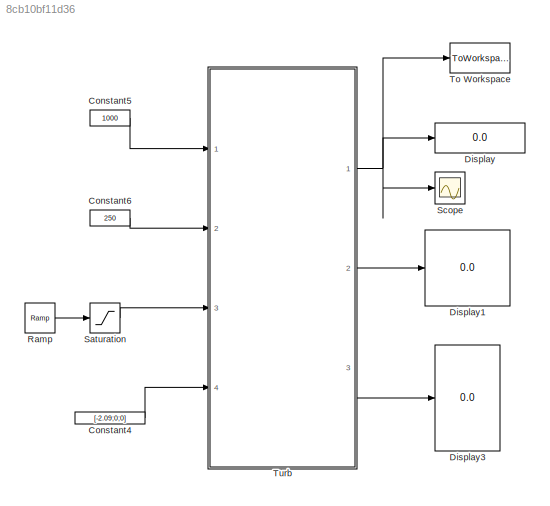
MODEL slx_8cb10bf11d36
KIND model
BLOCK [Constant] Constant4
  Value = [-2.09;0;0]
BLOCK [Constant] Constant5
  Value = 1000
BLOCK [Constant] Constant6
  Value = 250
BLOCK [Display] Display
  Decimation = 1
  Ports = [1]
BLOCK [Display] Display1
  Decimation = 1
  Ports = [1]
BLOCK [Display] Display3
  Decimation = 1
  Ports = [1]
BLOCK [Reference] Ramp  REF=simulink/Sources/Ramp
  Ports = [0, 1]
  SourceBlock = simulink/Sources/Ramp
  SourceType = Ramp
  VectorParams1D = on
  X0 = 0
  slope = 0.1
  start = 0
BLOCK [Saturate] Saturation
  InputPortMap = u0
  LowerLimit = 0
  Ports = [1, 1]
  UpperLimit = 1
BLOCK [Scope] Scope
  DataFormat = StructureWithTime
  Floating = off
  NumInputPorts = 1
  Ports = [1]
  SampleTime = 0
  ShowLegends = off
BLOCK [ToWorkspace] To Workspace
  MaxDataPoints = inf
  Ports = [1]
  SampleTime = -1
  SaveFormat = Structure With Time
  VariableName = Turb9
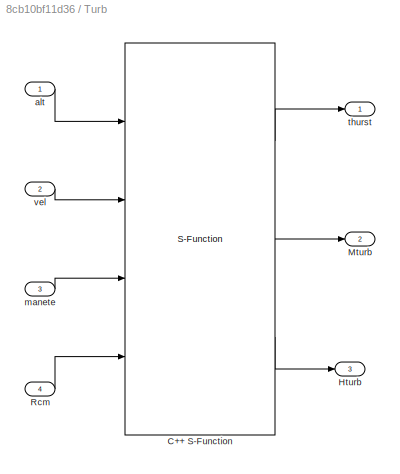
BLOCK [SubSystem] Turb
  FunctionWithSeparateData = off
  MaskHideContents = off
  MinAlgLoopOccurrences = off
  Opaque = off
  Ports = [4, 3]
  PropExecContextOutsideSubsystem = off
  RTWSystemCode = Auto
  RequestExecContextInheritance = off
  TreatAsAtomicUnit = on
BLOCK [S-Function] Turb/C++ S-Function
  EnableBusSupport = off
  FunctionName = turb_sf
  Ports = [4, 3]
BLOCK [Outport] Turb/Hturb
  IconDisplay = Port number
  Port = 3
BLOCK [Outport] Turb/Mturb
  IconDisplay = Port number
  Port = 2
BLOCK [Inport] Turb/Rcm
  IconDisplay = Port number
  Port = 4
BLOCK [Inport] Turb/alt
  IconDisplay = Port number
BLOCK [Inport] Turb/manete
  IconDisplay = Port number
  Port = 3
BLOCK [Outport] Turb/thurst
  IconDisplay = Port number
BLOCK [Inport] Turb/vel
  IconDisplay = Port number
  Port = 2
LINE Constant4:1 -> Turb:4
LINE Constant5:1 -> Turb:1
LINE Constant6:1 -> Turb:2
LINE Ramp:1 -> Saturation:1
LINE Saturation:1 -> Turb:3
LINE Turb/C++ S-Function:1 -> Turb/thurst:1
LINE Turb/C++ S-Function:2 -> Turb/Mturb:1
LINE Turb/C++ S-Function:3 -> Turb/Hturb:1
LINE Turb/Rcm:1 -> Turb/C++ S-Function:4
LINE Turb/alt:1 -> Turb/C++ S-Function:1
LINE Turb/manete:1 -> Turb/C++ S-Function:3
LINE Turb/vel:1 -> Turb/C++ S-Function:2
NET Turb:1 -> Display:1, Scope:1, To Workspace:1
LINE Turb:2 -> Display1:1
LINE Turb:3 -> Display3:1
note: NET lines group one-source signal fan-out (src -> all destinations, sorted); 1:1 wires keep LINE
